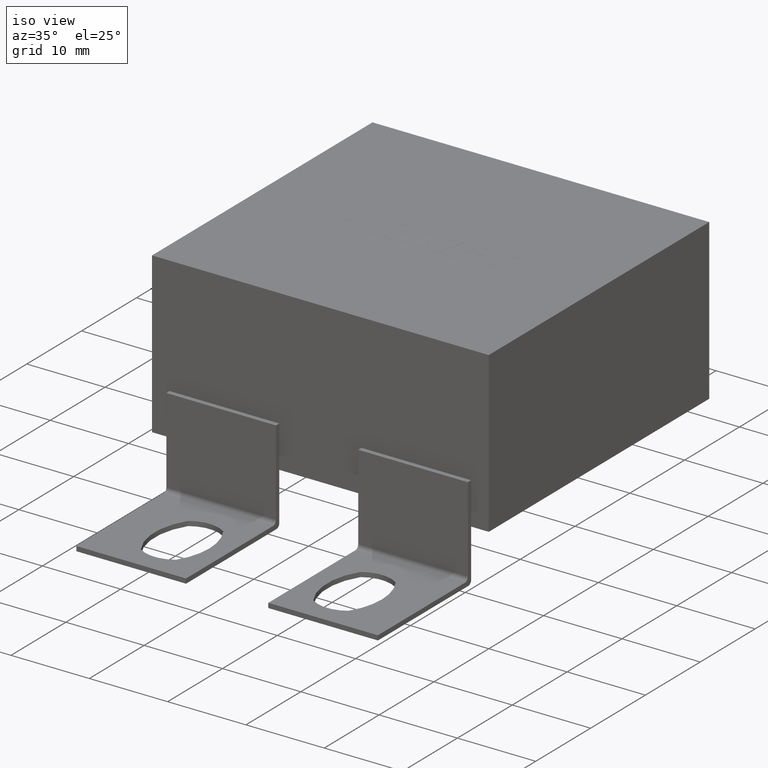
[diagram: clean part render]
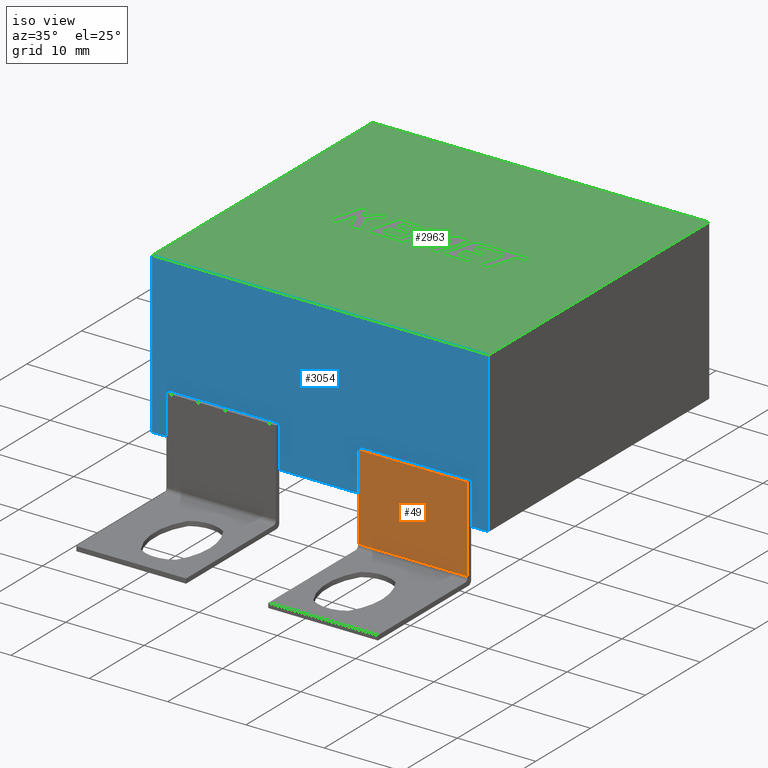
[diagram: same view with three faces highlighted in distinct colors, each labeled with its STEP entity id]
A machine part, iso view with three faces highlighted in distinct colors.
Their STEP definitions:

[orange] entity #49 — the highlighted planar face has unit normal (0, 1, 0).
#49 = ADVANCED_FACE ( 'NONE', ( #792 ), #699, .F. ) ;
#177 = CARTESIAN_POINT ( 'NONE',  ( 26.74999999999999600, -0.5999999999999999800, -5.545844941771884300 ) ) ;
#252 = CARTESIAN_POINT ( 'NONE',  ( 40.74999999999999300, -0.5999999999999999800, -6.645844941771883900 ) ) ;
#264 = CARTESIAN_POINT ( 'NONE',  ( 40.74999999999999300, -0.5999999999999999800, 5.354155058228116100 ) ) ;
#545 = DIRECTION ( 'NONE',  ( 0.0000000000000000000, -0.0000000000000000000, -1.000000000000000000 ) ) ;
#693 = ORIENTED_EDGE ( 'NONE', *, *, #1284, .T. ) ;
#699 = PLANE ( 'NONE',  #2432 ) ;
#790 = DIRECTION ( 'NONE',  ( 1.000000000000000000, -0.0000000000000000000, -0.0000000000000000000 ) ) ;
#792 = FACE_OUTER_BOUND ( 'NONE', #3498, .T. ) ;
#988 = VERTEX_POINT ( 'NONE', #177 ) ;
#1166 = EDGE_CURVE ( 'NONE', #1173, #2962, #1320, .T. ) ;
#1173 = VERTEX_POINT ( 'NONE', #1329 ) ;
#1180 = ORIENTED_EDGE ( 'NONE', *, *, #3388, .F. ) ;
#1203 = VECTOR ( 'NONE', #1506, 1000.000000000000000 ) ;
#1215 = VERTEX_POINT ( 'NONE', #3046 ) ;
#1272 = VECTOR ( 'NONE', #790, 1000.000000000000000 ) ;
#1284 = EDGE_CURVE ( 'NONE', #988, #1215, #3432, .T. ) ;
#1320 = LINE ( 'NONE', #264, #1272 ) ;
#1329 = CARTESIAN_POINT ( 'NONE',  ( 26.74999999999999600, -0.5999999999999999800, 5.354155058228116100 ) ) ;
#1434 = CARTESIAN_POINT ( 'NONE',  ( 40.74999999999999300, -0.5999999999999999800, 5.354155058228116100 ) ) ;
#1506 = DIRECTION ( 'NONE',  ( 0.0000000000000000000, 0.0000000000000000000, 1.000000000000000000 ) ) ;
#1970 = CARTESIAN_POINT ( 'NONE',  ( 43.00000000000000000, -0.5999999999999999800, -5.545844941771884300 ) ) ;
#2038 = DIRECTION ( 'NONE',  ( 0.0000000000000000000, 1.000000000000000000, 0.0000000000000000000 ) ) ;
#2273 = ORIENTED_EDGE ( 'NONE', *, *, #3082, .F. ) ;
#2285 = CARTESIAN_POINT ( 'NONE',  ( 43.00000000000000000, -0.5999999999999999800, 0.0000000000000000000 ) ) ;
#2350 = LINE ( 'NONE', #2628, #1203 ) ;
#2432 = AXIS2_PLACEMENT_3D ( 'NONE', #2285, #2038, #2535 ) ;
#2507 = DIRECTION ( 'NONE',  ( 1.000000000000000000, 0.0000000000000000000, 0.0000000000000000000 ) ) ;
#2508 = LINE ( 'NONE', #252, #2886 ) ;
#2528 = ORIENTED_EDGE ( 'NONE', *, *, #1166, .F. ) ;
#2535 = DIRECTION ( 'NONE',  ( 0.0000000000000000000, 0.0000000000000000000, 1.000000000000000000 ) ) ;
#2628 = CARTESIAN_POINT ( 'NONE',  ( 26.74999999999999600, -0.5999999999999999800, -6.645844941771883900 ) ) ;
#2715 = VECTOR ( 'NONE', #2507, 1000.000000000000000 ) ;
#2886 = VECTOR ( 'NONE', #545, 1000.000000000000000 ) ;
#2962 = VERTEX_POINT ( 'NONE', #1434 ) ;
#3046 = CARTESIAN_POINT ( 'NONE',  ( 40.74999999999999300, -0.5999999999999999800, -5.545844941771884300 ) ) ;
#3082 = EDGE_CURVE ( 'NONE', #988, #1173, #2350, .T. ) ;
#3388 = EDGE_CURVE ( 'NONE', #2962, #1215, #2508, .T. ) ;
#3432 = LINE ( 'NONE', #1970, #2715 ) ;
#3498 = EDGE_LOOP ( 'NONE', ( #2273, #693, #1180, #2528 ) ) ;

[blue] entity #3054 — the highlighted planar face has unit normal (0, 1, 0).
#5 = ORIENTED_EDGE ( 'NONE', *, *, #79, .T. ) ;
#15 = EDGE_CURVE ( 'NONE', #3009, #1210, #199, .T. ) ;
#24 = CARTESIAN_POINT ( 'NONE',  ( 2.250000000000000400, 0.0000000000000000000, -6.645844941771883900 ) ) ;
#25 = ORIENTED_EDGE ( 'NONE', *, *, #1951, .T. ) ;
#67 = LINE ( 'NONE', #1383, #1856 ) ;
#79 = EDGE_CURVE ( 'NONE', #3009, #1369, #2644, .T. ) ;
#125 = CARTESIAN_POINT ( 'NONE',  ( 0.0000000000000000000, 0.0000000000000000000, 20.39999999999999900 ) ) ;
#199 = LINE ( 'NONE', #2500, #1045 ) ;
#328 = VECTOR ( 'NONE', #1623, 1000.000000000000000 ) ;
#329 = LINE ( 'NONE', #24, #328 ) ;
#433 = DIRECTION ( 'NONE',  ( 0.0000000000000000000, -0.0000000000000000000, 1.000000000000000000 ) ) ;
#440 = VERTEX_POINT ( 'NONE', #907 ) ;
#488 = VECTOR ( 'NONE', #2582, 1000.000000000000000 ) ;
#520 = EDGE_CURVE ( 'NONE', #1210, #440, #2513, .T. ) ;
#550 = EDGE_CURVE ( 'NONE', #1377, #3225, #3025, .T. ) ;
#558 = VERTEX_POINT ( 'NONE', #3309 ) ;
#595 = ORIENTED_EDGE ( 'NONE', *, *, #2752, .F. ) ;
#616 = CARTESIAN_POINT ( 'NONE',  ( 43.00000000000000000, 0.0000000000000000000, 20.39999999999999900 ) ) ;
#630 = DIRECTION ( 'NONE',  ( 1.000000000000000000, 0.0000000000000000000, 0.0000000000000000000 ) ) ;
#689 = EDGE_CURVE ( 'NONE', #1226, #558, #949, .T. ) ;
#696 = CARTESIAN_POINT ( 'NONE',  ( 0.0000000000000000000, 0.0000000000000000000, 20.39999999999999900 ) ) ;
#700 = DIRECTION ( 'NONE',  ( 1.000000000000000000, -0.0000000000000000000, -0.0000000000000000000 ) ) ;
#714 = LINE ( 'NONE', #1660, #2822 ) ;
#768 = VERTEX_POINT ( 'NONE', #1466 ) ;
#793 = LINE ( 'NONE', #2724, #1673 ) ;
#868 = CARTESIAN_POINT ( 'NONE',  ( 2.250000000000000400, 0.0000000000000000000, 5.354155058228116100 ) ) ;
#907 = CARTESIAN_POINT ( 'NONE',  ( 43.00000000000000000, 0.0000000000000000000, 0.0000000000000000000 ) ) ;
#931 = CARTESIAN_POINT ( 'NONE',  ( 16.25000000000000000, 0.0000000000000000000, 0.0000000000000000000 ) ) ;
#949 = LINE ( 'NONE', #868, #1280 ) ;
#962 = CARTESIAN_POINT ( 'NONE',  ( 0.0000000000000000000, 0.0000000000000000000, 0.0000000000000000000 ) ) ;
#1045 = VECTOR ( 'NONE', #2768, 1000.000000000000000 ) ;
#1079 = VECTOR ( 'NONE', #2509, 1000.000000000000000 ) ;
#1130 = VERTEX_POINT ( 'NONE', #2453 ) ;
#1141 = DIRECTION ( 'NONE',  ( -1.000000000000000000, -0.0000000000000000000, -0.0000000000000000000 ) ) ;
#1210 = VERTEX_POINT ( 'NONE', #1865 ) ;
#1226 = VERTEX_POINT ( 'NONE', #1397 ) ;
#1280 = VECTOR ( 'NONE', #1141, 1000.000000000000000 ) ;
#1323 = DIRECTION ( 'NONE',  ( 0.0000000000000000000, 0.0000000000000000000, 1.000000000000000000 ) ) ;
#1349 = ORIENTED_EDGE ( 'NONE', *, *, #550, .T. ) ;
#1369 = VERTEX_POINT ( 'NONE', #1737 ) ;
#1377 = VERTEX_POINT ( 'NONE', #931 ) ;
#1383 = CARTESIAN_POINT ( 'NONE',  ( 16.25000000000000000, 0.0000000000000000000, -6.645844941771883900 ) ) ;
#1397 = CARTESIAN_POINT ( 'NONE',  ( 16.25000000000000000, 0.0000000000000000000, 5.354155058228116100 ) ) ;
#1466 = CARTESIAN_POINT ( 'NONE',  ( 40.74999999999999300, 0.0000000000000000000, 5.354155058228116100 ) ) ;
#1499 = CARTESIAN_POINT ( 'NONE',  ( 40.74999999999999300, 0.0000000000000000000, 5.354155058228116100 ) ) ;
#1551 = VECTOR ( 'NONE', #700, 1000.000000000000000 ) ;
#1606 = VECTOR ( 'NONE', #2313, 1000.000000000000000 ) ;
#1623 = DIRECTION ( 'NONE',  ( -0.0000000000000000000, -0.0000000000000000000, -1.000000000000000000 ) ) ;
#1660 = CARTESIAN_POINT ( 'NONE',  ( 26.74999999999999600, 0.0000000000000000000, -6.645844941771883900 ) ) ;
#1673 = VECTOR ( 'NONE', #2705, 1000.000000000000000 ) ;
#1725 = DIRECTION ( 'NONE',  ( 0.0000000000000000000, -0.0000000000000000000, -1.000000000000000000 ) ) ;
#1727 = VERTEX_POINT ( 'NONE', #2996 ) ;
#1737 = CARTESIAN_POINT ( 'NONE',  ( 0.0000000000000000000, 0.0000000000000000000, 0.0000000000000000000 ) ) ;
#1856 = VECTOR ( 'NONE', #1323, 1000.000000000000000 ) ;
#1865 = CARTESIAN_POINT ( 'NONE',  ( 43.00000000000000000, 0.0000000000000000000, 20.39999999999999900 ) ) ;
#1951 = EDGE_CURVE ( 'NONE', #1369, #1130, #3092, .T. ) ;
#2026 = EDGE_CURVE ( 'NONE', #768, #3093, #2873, .T. ) ;
#2028 = CARTESIAN_POINT ( 'NONE',  ( 0.0000000000000000000, 0.0000000000000000000, 20.39999999999999900 ) ) ;
#2030 = LINE ( 'NONE', #1499, #1551 ) ;
#2193 = EDGE_CURVE ( 'NONE', #1377, #1226, #67, .T. ) ;
#2247 = EDGE_CURVE ( 'NONE', #3225, #1727, #714, .T. ) ;
#2262 = VECTOR ( 'NONE', #630, 1000.000000000000000 ) ;
#2313 = DIRECTION ( 'NONE',  ( 1.000000000000000000, 0.0000000000000000000, 0.0000000000000000000 ) ) ;
#2323 = ORIENTED_EDGE ( 'NONE', *, *, #689, .F. ) ;
#2362 = ORIENTED_EDGE ( 'NONE', *, *, #2506, .T. ) ;
#2409 = VECTOR ( 'NONE', #1725, 1000.000000000000000 ) ;
#2453 = CARTESIAN_POINT ( 'NONE',  ( 2.250000000000000400, 0.0000000000000000000, 0.0000000000000000000 ) ) ;
#2500 = CARTESIAN_POINT ( 'NONE',  ( 0.0000000000000000000, 0.0000000000000000000, 20.39999999999999900 ) ) ;
#2506 = EDGE_CURVE ( 'NONE', #1727, #768, #2030, .T. ) ;
#2509 = DIRECTION ( 'NONE',  ( -0.0000000000000000000, -0.0000000000000000000, -1.000000000000000000 ) ) ;
#2513 = LINE ( 'NONE', #616, #1079 ) ;
#2582 = DIRECTION ( 'NONE',  ( -0.0000000000000000000, -0.0000000000000000000, -1.000000000000000000 ) ) ;
#2603 = PLANE ( 'NONE',  #3382 ) ;
#2616 = CARTESIAN_POINT ( 'NONE',  ( 40.74999999999999300, 0.0000000000000000000, 0.0000000000000000000 ) ) ;
#2644 = LINE ( 'NONE', #2028, #488 ) ;
#2705 = DIRECTION ( 'NONE',  ( 1.000000000000000000, 0.0000000000000000000, 0.0000000000000000000 ) ) ;
#2724 = CARTESIAN_POINT ( 'NONE',  ( 0.0000000000000000000, 0.0000000000000000000, 0.0000000000000000000 ) ) ;
#2725 = FACE_OUTER_BOUND ( 'NONE', #3452, .T. ) ;
#2752 = EDGE_CURVE ( 'NONE', #558, #1130, #329, .T. ) ;
#2756 = EDGE_CURVE ( 'NONE', #3093, #440, #793, .T. ) ;
#2768 = DIRECTION ( 'NONE',  ( 1.000000000000000000, 0.0000000000000000000, 0.0000000000000000000 ) ) ;
#2793 = ORIENTED_EDGE ( 'NONE', *, *, #520, .F. ) ;
#2822 = VECTOR ( 'NONE', #3470, 1000.000000000000000 ) ;
#2827 = ORIENTED_EDGE ( 'NONE', *, *, #2247, .T. ) ;
#2851 = DIRECTION ( 'NONE',  ( 0.0000000000000000000, 1.000000000000000000, 0.0000000000000000000 ) ) ;
#2856 = CARTESIAN_POINT ( 'NONE',  ( 40.74999999999999300, 0.0000000000000000000, -6.645844941771883900 ) ) ;
#2873 = LINE ( 'NONE', #2856, #2409 ) ;
#2911 = ORIENTED_EDGE ( 'NONE', *, *, #2193, .F. ) ;
#2996 = CARTESIAN_POINT ( 'NONE',  ( 26.74999999999999600, 0.0000000000000000000, 5.354155058228116100 ) ) ;
#3009 = VERTEX_POINT ( 'NONE', #125 ) ;
#3025 = LINE ( 'NONE', #3090, #2262 ) ;
#3054 = ADVANCED_FACE ( 'NONE', ( #2725 ), #2603, .F. ) ;
#3090 = CARTESIAN_POINT ( 'NONE',  ( 0.0000000000000000000, 0.0000000000000000000, 0.0000000000000000000 ) ) ;
#3092 = LINE ( 'NONE', #962, #1606 ) ;
#3093 = VERTEX_POINT ( 'NONE', #2616 ) ;
#3210 = CARTESIAN_POINT ( 'NONE',  ( 26.74999999999999600, 0.0000000000000000000, 0.0000000000000000000 ) ) ;
#3225 = VERTEX_POINT ( 'NONE', #3210 ) ;
#3254 = ORIENTED_EDGE ( 'NONE', *, *, #2756, .T. ) ;
#3305 = ORIENTED_EDGE ( 'NONE', *, *, #15, .F. ) ;
#3309 = CARTESIAN_POINT ( 'NONE',  ( 2.250000000000000400, 0.0000000000000000000, 5.354155058228116100 ) ) ;
#3382 = AXIS2_PLACEMENT_3D ( 'NONE', #696, #2851, #433 ) ;
#3409 = ORIENTED_EDGE ( 'NONE', *, *, #2026, .T. ) ;
#3452 = EDGE_LOOP ( 'NONE', ( #2362, #3409, #3254, #2793, #3305, #5, #25, #595, #2323, #2911, #1349, #2827 ) ) ;
#3470 = DIRECTION ( 'NONE',  ( 0.0000000000000000000, 0.0000000000000000000, 1.000000000000000000 ) ) ;

[green] entity #2963 — the highlighted planar face has unit normal (0, 0, -1).
#15 = EDGE_CURVE ( 'NONE', #3009, #1210, #199, .T. ) ;
#125 = CARTESIAN_POINT ( 'NONE',  ( 0.0000000000000000000, 0.0000000000000000000, 20.39999999999999900 ) ) ;
#191 = ORIENTED_EDGE ( 'NONE', *, *, #15, .T. ) ;
#199 = LINE ( 'NONE', #2500, #1045 ) ;
#247 = DIRECTION ( 'NONE',  ( -1.000000000000000000, -0.0000000000000000000, -0.0000000000000000000 ) ) ;
#485 = VECTOR ( 'NONE', #1589, 1000.000000000000000 ) ;
#489 = CARTESIAN_POINT ( 'NONE',  ( 0.0000000000000000000, 40.20000000000000300, 20.39999999999999900 ) ) ;
#581 = EDGE_CURVE ( 'NONE', #1210, #1532, #991, .T. ) ;
#614 = FACE_OUTER_BOUND ( 'NONE', #1487, .T. ) ;
#657 = AXIS2_PLACEMENT_3D ( 'NONE', #3091, #1491, #1219 ) ;
#695 = ORIENTED_EDGE ( 'NONE', *, *, #1087, .T. ) ;
#727 = CARTESIAN_POINT ( 'NONE',  ( 0.0000000000000000000, 0.0000000000000000000, 20.39999999999999900 ) ) ;
#748 = CARTESIAN_POINT ( 'NONE',  ( 43.00000000000000000, 40.20000000000000300, 20.39999999999999900 ) ) ;
#991 = LINE ( 'NONE', #2660, #485 ) ;
#1045 = VECTOR ( 'NONE', #2768, 1000.000000000000000 ) ;
#1087 = EDGE_CURVE ( 'NONE', #1558, #3009, #2928, .T. ) ;
#1159 = VECTOR ( 'NONE', #247, 1000.000000000000000 ) ;
#1194 = ORIENTED_EDGE ( 'NONE', *, *, #3235, .T. ) ;
#1210 = VERTEX_POINT ( 'NONE', #1865 ) ;
#1219 = DIRECTION ( 'NONE',  ( -1.000000000000000000, 0.0000000000000000000, -0.0000000000000000000 ) ) ;
#1487 = EDGE_LOOP ( 'NONE', ( #695, #191, #2327, #1194 ) ) ;
#1491 = DIRECTION ( 'NONE',  ( 0.0000000000000000000, 0.0000000000000000000, -1.000000000000000000 ) ) ;
#1532 = VERTEX_POINT ( 'NONE', #748 ) ;
#1558 = VERTEX_POINT ( 'NONE', #489 ) ;
#1589 = DIRECTION ( 'NONE',  ( 0.0000000000000000000, 1.000000000000000000, 0.0000000000000000000 ) ) ;
#1865 = CARTESIAN_POINT ( 'NONE',  ( 43.00000000000000000, 0.0000000000000000000, 20.39999999999999900 ) ) ;
#1877 = CARTESIAN_POINT ( 'NONE',  ( 0.0000000000000000000, 40.20000000000000300, 20.39999999999999900 ) ) ;
#1987 = PLANE ( 'NONE',  #657 ) ;
#2327 = ORIENTED_EDGE ( 'NONE', *, *, #581, .T. ) ;
#2346 = LINE ( 'NONE', #1877, #1159 ) ;
#2500 = CARTESIAN_POINT ( 'NONE',  ( 0.0000000000000000000, 0.0000000000000000000, 20.39999999999999900 ) ) ;
#2660 = CARTESIAN_POINT ( 'NONE',  ( 43.00000000000000000, 0.0000000000000000000, 20.39999999999999900 ) ) ;
#2768 = DIRECTION ( 'NONE',  ( 1.000000000000000000, 0.0000000000000000000, 0.0000000000000000000 ) ) ;
#2928 = LINE ( 'NONE', #727, #3435 ) ;
#2963 = ADVANCED_FACE ( 'NONE', ( #614 ), #1987, .F. ) ;
#3009 = VERTEX_POINT ( 'NONE', #125 ) ;
#3091 = CARTESIAN_POINT ( 'NONE',  ( 0.0000000000000000000, 0.0000000000000000000, 20.39999999999999900 ) ) ;
#3174 = DIRECTION ( 'NONE',  ( -0.0000000000000000000, -1.000000000000000000, -0.0000000000000000000 ) ) ;
#3235 = EDGE_CURVE ( 'NONE', #1532, #1558, #2346, .T. ) ;
#3435 = VECTOR ( 'NONE', #3174, 1000.000000000000000 ) ;